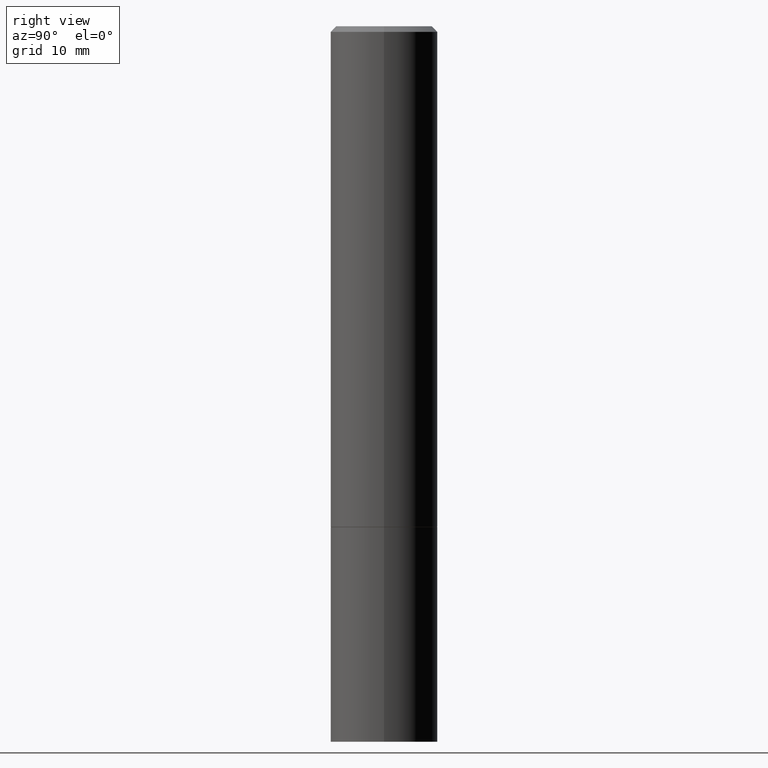
[diagram: clean part render]
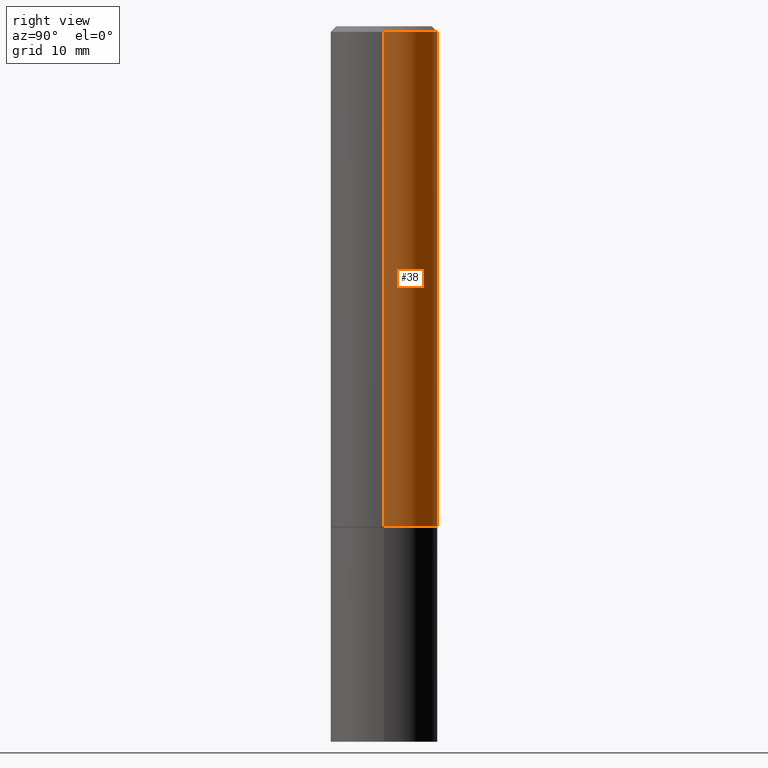
[diagram: same view with one face highlighted and labeled with its STEP entity id]
A machine part, right view. The second image highlights one B-rep face of the part: STEP entity #38.
In plain terms, the highlighted cylindrical surface (partial cylindrical patch) has radius 4.7625 mm, axis along (-0, 0, 1).
Its self-contained STEP definition (entity closure, byte-faithful):
#4 = LINE ( 'NONE', #67, #323 ) ;
#8 = CYLINDRICAL_SURFACE ( 'NONE', #131, 0.1874999999999998890 ) ;
#12 = DIRECTION ( 'NONE',  ( -2.445468806185136597E-29, 3.491481338843145583E-15, 1.000000000000000000 ) ) ;
#15 = LINE ( 'NONE', #239, #87 ) ;
#38 = ADVANCED_FACE ( 'NONE', ( #258 ), #8, .T. ) ;
#51 = DIRECTION ( 'NONE',  ( -2.445468806185136597E-29, 3.491481338843145583E-15, 1.000000000000000000 ) ) ;
#57 = AXIS2_PLACEMENT_3D ( 'NONE', #95, #51, #152 ) ;
#59 = ORIENTED_EDGE ( 'NONE', *, *, #248, .F. ) ;
#64 = DIRECTION ( 'NONE',  ( 1.000000000000000000, -6.982962677686265922E-15, 4.876176775795935793E-29 ) ) ;
#67 = CARTESIAN_POINT ( 'NONE',  ( -0.1874999999999998890, 1.332267629550187060E-15, -9.223003294227942385E-30 ) ) ;
#80 = EDGE_CURVE ( 'NONE', #228, #174, #4, .T. ) ;
#87 = VECTOR ( 'NONE', #215, 39.37007874015748143 ) ;
#95 = CARTESIAN_POINT ( 'NONE',  ( 4.890937612370284544E-31, -6.982962677686307633E-17, -0.02000000000000004552 ) ) ;
#96 = CARTESIAN_POINT ( 'NONE',  ( 4.277124942017804562E-29, -6.106600861636661664E-15, -1.749000000000000110 ) ) ;
#107 = VERTEX_POINT ( 'NONE', #284 ) ;
#124 = CARTESIAN_POINT ( 'NONE',  ( -0.1874999999999997502, 1.239475875289309935E-15, -0.02000000000000004552 ) ) ;
#131 = AXIS2_PLACEMENT_3D ( 'NONE', #280, #12, #64 ) ;
#144 = EDGE_CURVE ( 'NONE', #107, #228, #155, .T. ) ;
#150 = CARTESIAN_POINT ( 'NONE',  ( -0.1875000000000000278, -1.755947614656572266E-15, -1.749000000000000110 ) ) ;
#152 = DIRECTION ( 'NONE',  ( 1.000000000000000000, -6.982962677686265133E-15, 0.000000000000000000 ) ) ;
#155 = CIRCLE ( 'NONE', #267, 0.1875000000000000278 ) ;
#170 = DIRECTION ( 'NONE',  ( -2.445468806185136877E-29, 3.491481338843145188E-15, 1.000000000000000000 ) ) ;
#174 = VERTEX_POINT ( 'NONE', #124 ) ;
#182 = CIRCLE ( 'NONE', #57, 0.1874999999999997502 ) ;
#185 = DIRECTION ( 'NONE',  ( 1.000000000000000000, -6.982962677686266711E-15, 0.000000000000000000 ) ) ;
#188 = ORIENTED_EDGE ( 'NONE', *, *, #144, .T. ) ;
#196 = CARTESIAN_POINT ( 'NONE',  ( 0.1874999999999997502, -1.356173001359023494E-15, -0.02000000000000004552 ) ) ;
#215 = DIRECTION ( 'NONE',  ( -2.445468806185136877E-29, 3.491481338843145188E-15, 1.000000000000000000 ) ) ;
#221 = EDGE_CURVE ( 'NONE', #107, #347, #15, .T. ) ;
#223 = ORIENTED_EDGE ( 'NONE', *, *, #221, .F. ) ;
#228 = VERTEX_POINT ( 'NONE', #150 ) ;
#235 = ORIENTED_EDGE ( 'NONE', *, *, #80, .T. ) ;
#239 = CARTESIAN_POINT ( 'NONE',  ( 0.1874999999999998890, -1.309305502066174022E-15, 9.142831454617374006E-30 ) ) ;
#243 = DIRECTION ( 'NONE',  ( -2.445468806185136597E-29, 3.491481338843145583E-15, 1.000000000000000000 ) ) ;
#248 = EDGE_CURVE ( 'NONE', #347, #174, #182, .T. ) ;
#258 = FACE_OUTER_BOUND ( 'NONE', #350, .T. ) ;
#267 = AXIS2_PLACEMENT_3D ( 'NONE', #96, #243, #185 ) ;
#280 = CARTESIAN_POINT ( 'NONE',  ( 0.000000000000000000, 0.000000000000000000, 0.000000000000000000 ) ) ;
#284 = CARTESIAN_POINT ( 'NONE',  ( 0.1875000000000000278, -7.415906363702837461E-15, -1.749000000000000110 ) ) ;
#323 = VECTOR ( 'NONE', #170, 39.37007874015748143 ) ;
#347 = VERTEX_POINT ( 'NONE', #196 ) ;
#350 = EDGE_LOOP ( 'NONE', ( #188, #235, #59, #223 ) ) ;